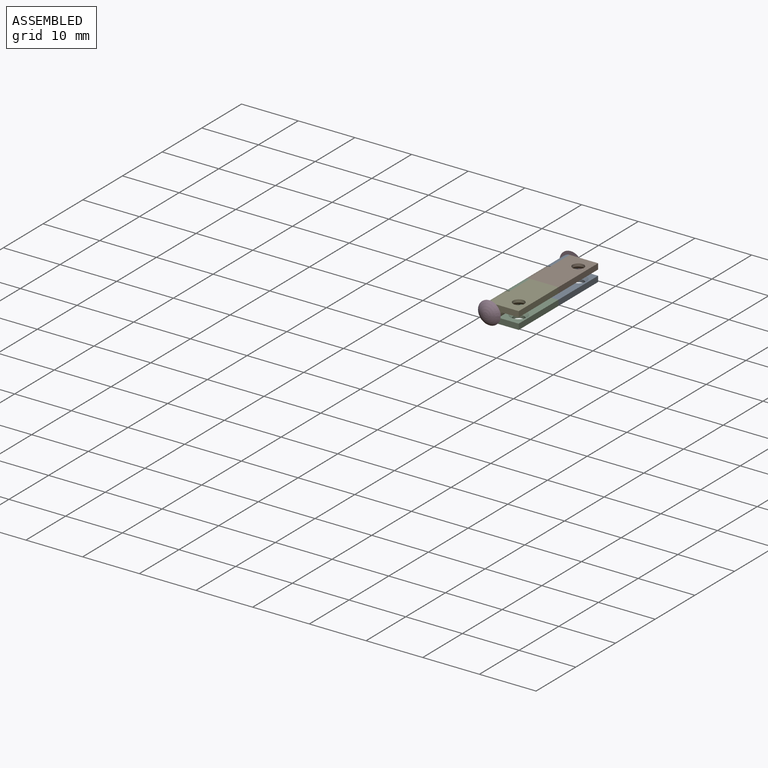
[diagram: assembled view]
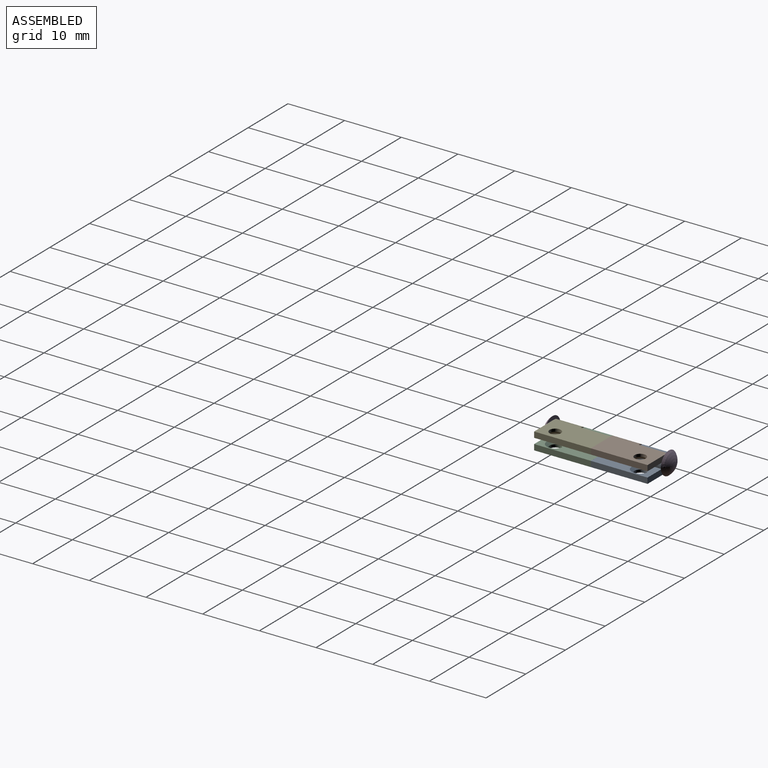
[diagram: assembled view, second angle]
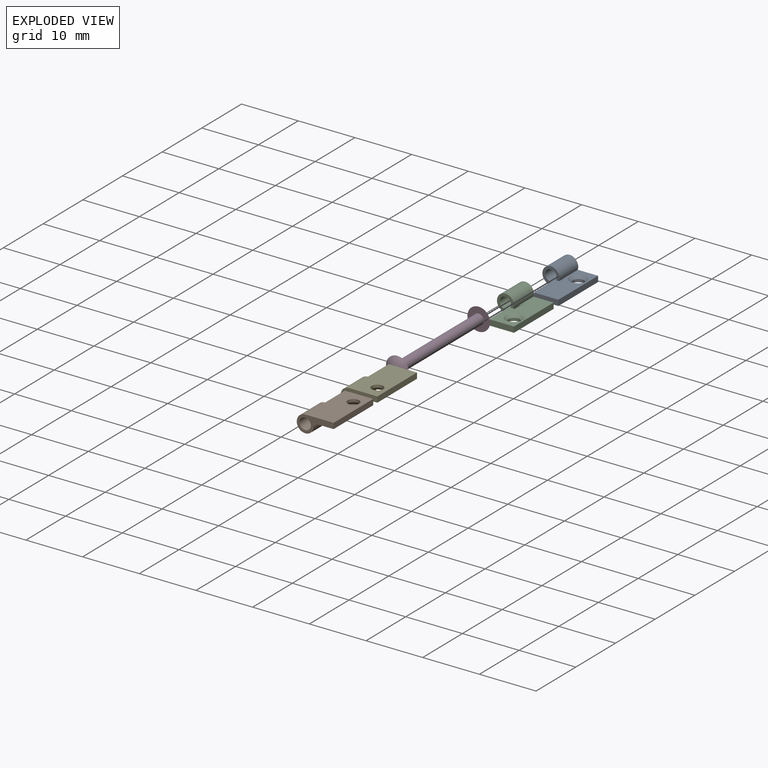
[diagram: exploded view]
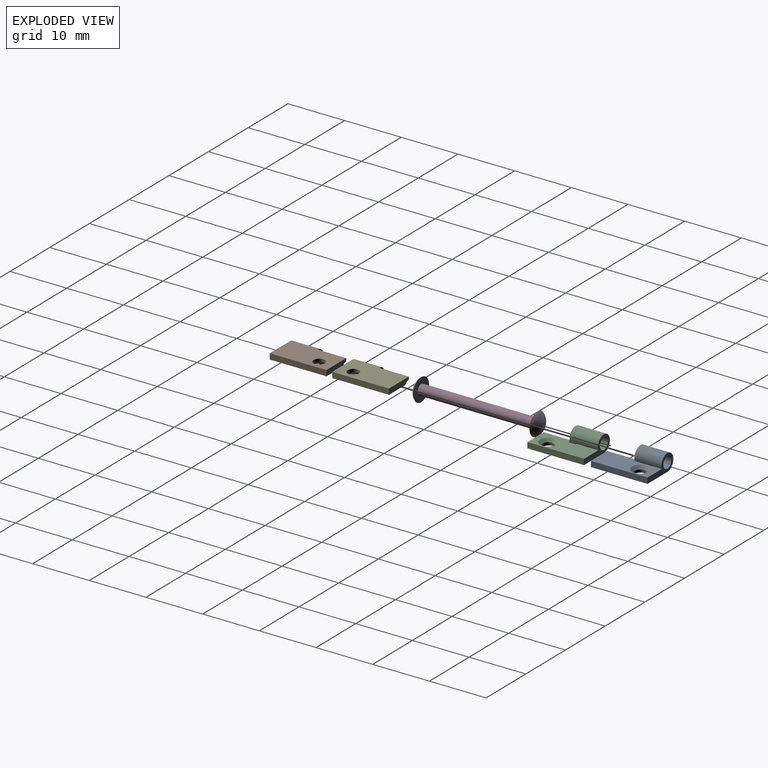
[diagram: exploded view, second angle]
ASSEMBLY  parts=5 mates=4
PART A: 11 faces, bbox 6.5x10x3 mm
  f0: cylinder r=1.5mm len=4.75mm, axis (0,1,0), area 36mm2, adj f2,f3,f5,f8
  f1: cylinder r=1mm len=10mm, axis (0,1,0), area 35.3mm2, adj f2,f5,f6,f7,f8
  f2: plane 10x4.13mm, normal (0,0,1), area 31.7mm2, adj f0,f1,f4,f5,f7,f8,f10
  f3: plane 10x5mm, normal (0,0,-1), area 46.9mm2, adj f0,f4,f5,f6,f7,f9
  f4: plane 10x1mm, normal (1,0,0), area 10mm2, adj f2,f3,f5,f7
  f5: plane 6.5x3mm, normal (0,1,0), area 7.9mm2, adj f0,f1,f2,f3,f4
  f6: plane 5.25x0.5mm, normal (-1,0,0), area 2.6mm2, adj f1,f3,f7,f8
  f7: plane 5x1mm, normal (0,-1,0), area 4.7mm2, adj f1,f2,f3,f4,f6
  f8: plane 3x3mm, normal (0,-1,0), area 3.2mm2, adj f0,f1,f2,f6
  f9: cylinder r=1mm len=2mm, axis (0,0,1), area 3.1mm2, adj f3,f10
  f10: cone r=1mm half-angle=45deg, axis (0,0,1), area 5.6mm2, adj f2,f9
PART B: 11 faces, bbox 6.5x10x3 mm
  f0: plane 3x3mm, normal (0,-1,0), area 3.2mm2, adj f1,f2,f4,f7
  f1: plane 10x4.13mm, normal (0,0,1), area 31.5mm2, adj f0,f2,f4,f5,f6,f8,f10
  f2: cylinder r=1.5mm len=5mm, axis (0,1,0), area 37.9mm2, adj f0,f1,f3,f6
  f3: plane 10x5mm, normal (0,0,-1), area 46.9mm2, adj f2,f5,f6,f7,f8,f9
  f4: cylinder r=1mm len=10mm, axis (0,1,0), area 36.7mm2, adj f0,f1,f6,f7,f8
  f5: plane 10x1mm, normal (1,0,0), area 10mm2, adj f1,f3,f6,f8
  f6: plane 6.5x3mm, normal (0,1,0), area 7.9mm2, adj f1,f2,f3,f4,f5
  f7: plane 5x0.5mm, normal (-1,0,0), area 2.5mm2, adj f0,f3,f4,f8
  f8: plane 5x1mm, normal (0,-1,0), area 4.7mm2, adj f1,f3,f4,f5,f7
  f9: cylinder r=1mm len=2mm, axis (0,0,1), area 3.1mm2, adj f3,f10
  f10: cone r=1mm half-angle=45deg, axis (0,0,1), area 5.6mm2, adj f1,f9
PART C: same geometry as B
PART D: 5 faces, bbox 22.5x4x4 mm
  f0: cylinder r=0.9mm len=20.5mm, axis (-1,0,0), area 115.9mm2, adj f1,f3
  f1: plane 4x4mm, normal (1,0,0), area 10mm2, adj f0,f2
  f2: sphere r=2.5mm, area 15.7mm2, adj f1
  f3: plane 4x4mm, normal (-1,0,0), area 10mm2, adj f0,f4
  f4: sphere r=2.5mm, area 15.7mm2, adj f3
PART E: same geometry as A
PLACE A t=(-0.37,8.19,-7.21)mm
PLACE B rot(axis=(1,0,0),180deg) t=(-0.37,8.19,-7.21)mm
PLACE C rot(axis=(-0.42,0.91,0),0deg) t=(-0.37,8.19,-7.21)mm
PLACE D rot(axis=(0.58,0.58,0.58),120deg) t=(-6.82,-2.06,-7.21)mm
PLACE E rot(axis=(1,0,0),180deg) t=(-0.37,8.19,-7.21)mm
MATE revolute D.f0 <-> E.f0  axis (0,1,0) through (-6.82,-2.06,-7.21)mm
MATE fastened D.f0 <-> A.f0  axis (0,-1,0) through (-6.82,18.44,-7.21)mm
MATE fastened B.f6 <-> E.f7  axis (0,-1,0) through (-1.82,8.19,-5.71)mm
MATE fastened A.f7 <-> C.f6  axis (0,-1,0) through (-1.82,8.19,-8.71)mm
